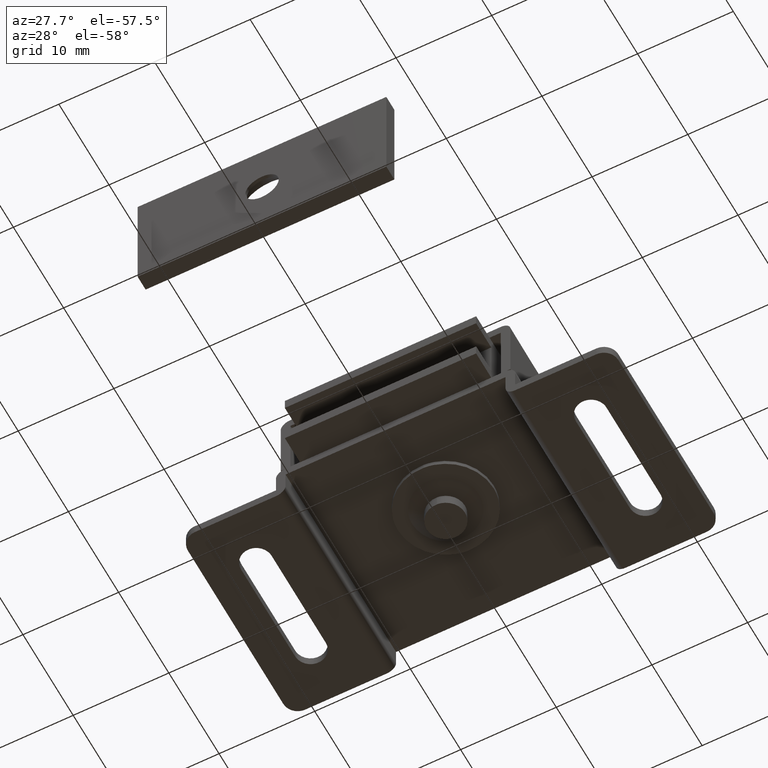
[diagram: clean part render]
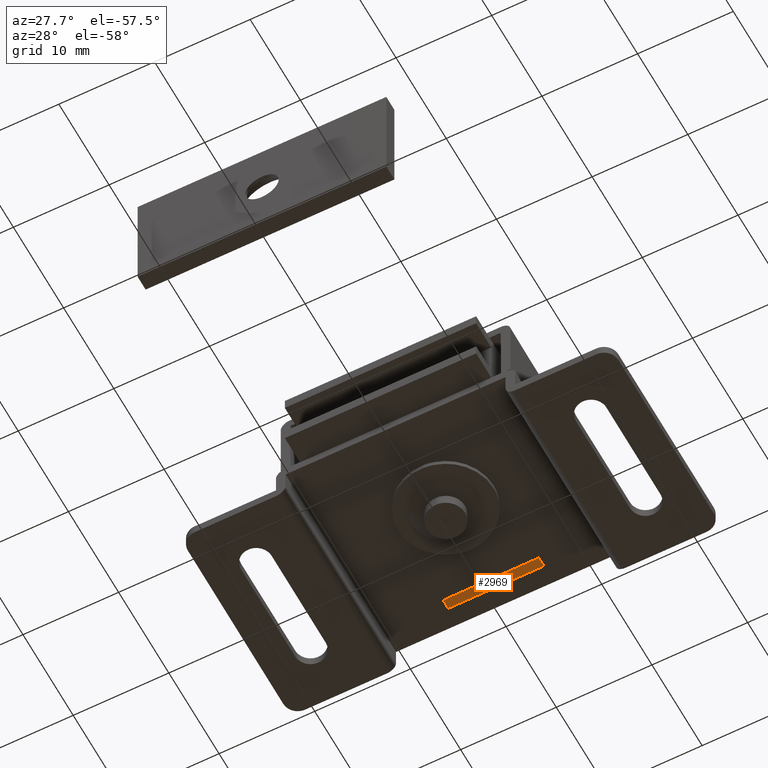
[diagram: same view with one face highlighted and labeled with its STEP entity id]
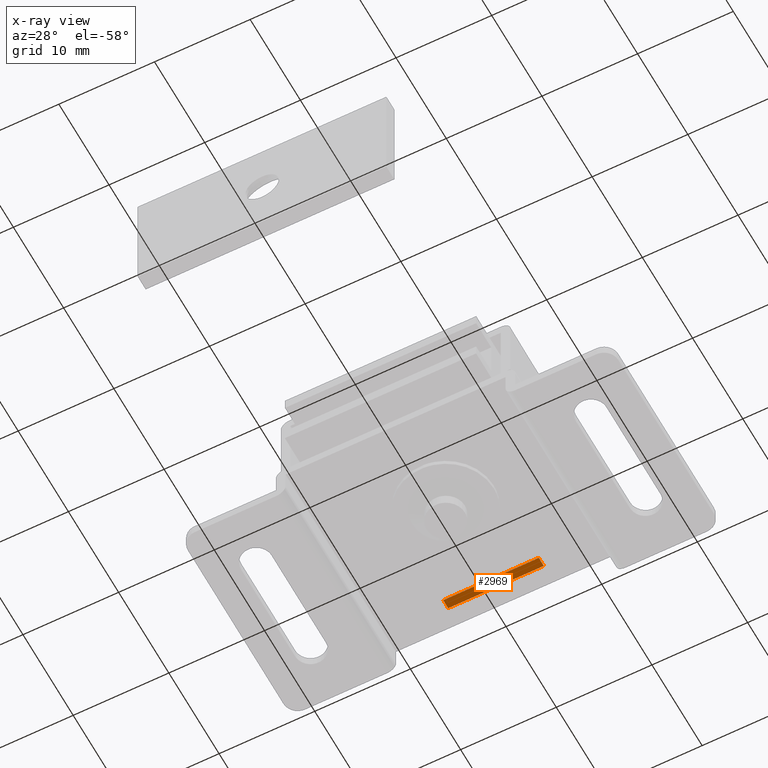
[diagram: x-ray of the same camera — body ghosted, the highlighted face saturated]
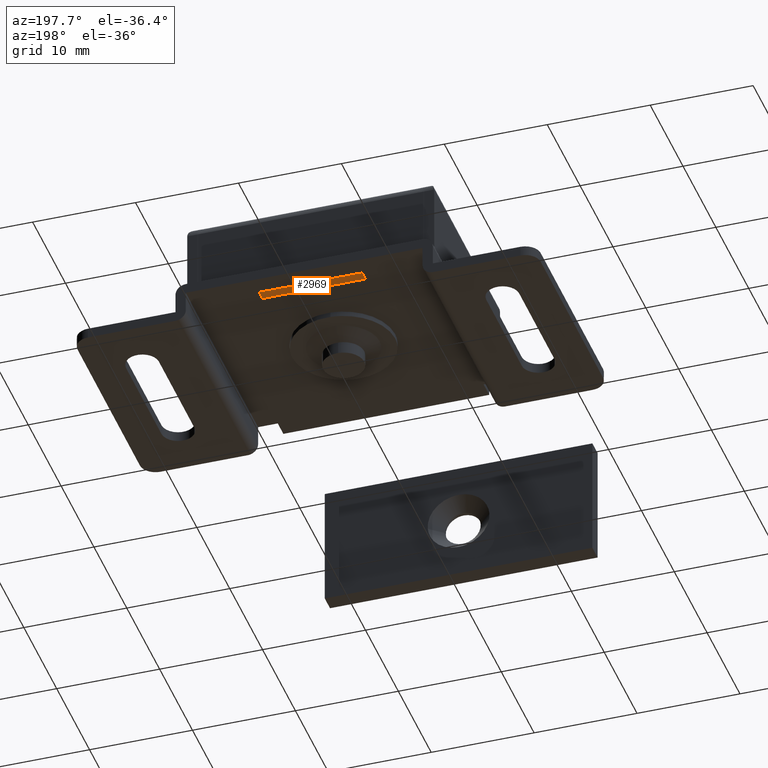
[diagram: same view with one face highlighted and labeled with its STEP entity id]
A machine part, auxiliary view. The second image highlights one B-rep face of the part: STEP entity #2969.
The next image is the same camera in x-ray: the body ghosted, the highlighted face saturated — about 0% of this face is hidden behind the body in this view.
A second angle (auxiliary view) of the same face is appended — the face is thin or edge-on in the first view.
In plain terms, the highlighted face is a freeform B-spline surface patch.
Its self-contained STEP definition (entity closure, byte-faithful):
#2934=CARTESIAN_POINT('',(-5.499499980618060,-1.950050001938194,3.0));
#2935=CARTESIAN_POINT('',(5.499500248838961,-1.950050001938194,3.0));
#2936=CARTESIAN_POINT('',(-5.499499980618060,-3.049950024883897,3.0));
#2937=CARTESIAN_POINT('',(5.499500248838961,-3.049950024883897,3.0));
#2938=B_SPLINE_SURFACE_WITH_KNOTS('',1,1,((#2934,#2936),(#2935,#2937)),.UNSPECIFIED.,.F.,.F.,.U.,(2,2),(2,2),(0.0,10.999000229457019),(0.041708334948495,0.958291687403247),.UNSPECIFIED.);
#2939=CARTESIAN_POINT('',(5.0,-2.0,3.0));
#2940=VERTEX_POINT('',#2939);
#2941=CARTESIAN_POINT('',(-5.0,-2.0,3.0));
#2942=VERTEX_POINT('',#2941);
#2943=CARTESIAN_POINT('',(5.0,-2.0,3.0));
#2944=CARTESIAN_POINT('',(-5.0,-2.0,3.0));
#2945=QUASI_UNIFORM_CURVE('',1,(#2943,#2944),.UNSPECIFIED.,.F.,.U.);
#2946=EDGE_CURVE('',#2940,#2942,#2945,.T.);
#2947=ORIENTED_EDGE('',*,*,#2946,.F.);
#2948=CARTESIAN_POINT('',(5.0,-3.0,3.0));
#2949=VERTEX_POINT('',#2948);
#2950=CARTESIAN_POINT('',(5.0,-3.0,3.0));
#2951=CARTESIAN_POINT('',(5.0,-2.0,3.0));
#2952=QUASI_UNIFORM_CURVE('',1,(#2950,#2951),.UNSPECIFIED.,.F.,.U.);
#2953=EDGE_CURVE('',#2949,#2940,#2952,.T.);
#2954=ORIENTED_EDGE('',*,*,#2953,.F.);
#2955=CARTESIAN_POINT('',(-5.0,-3.0,3.0));
#2956=VERTEX_POINT('',#2955);
#2957=CARTESIAN_POINT('',(-5.0,-3.0,3.0));
#2958=CARTESIAN_POINT('',(5.0,-3.0,3.0));
#2959=QUASI_UNIFORM_CURVE('',1,(#2957,#2958),.UNSPECIFIED.,.F.,.U.);
#2960=EDGE_CURVE('',#2956,#2949,#2959,.T.);
#2961=ORIENTED_EDGE('',*,*,#2960,.F.);
#2962=CARTESIAN_POINT('',(-5.0,-2.0,3.0));
#2963=CARTESIAN_POINT('',(-5.0,-3.0,3.0));
#2964=QUASI_UNIFORM_CURVE('',1,(#2962,#2963),.UNSPECIFIED.,.F.,.U.);
#2965=EDGE_CURVE('',#2942,#2956,#2964,.T.);
#2966=ORIENTED_EDGE('',*,*,#2965,.F.);
#2967=EDGE_LOOP('',(#2947,#2954,#2961,#2966));
#2968=FACE_OUTER_BOUND('',#2967,.T.);
#2969=ADVANCED_FACE('',(#2968),#2938,.T.);